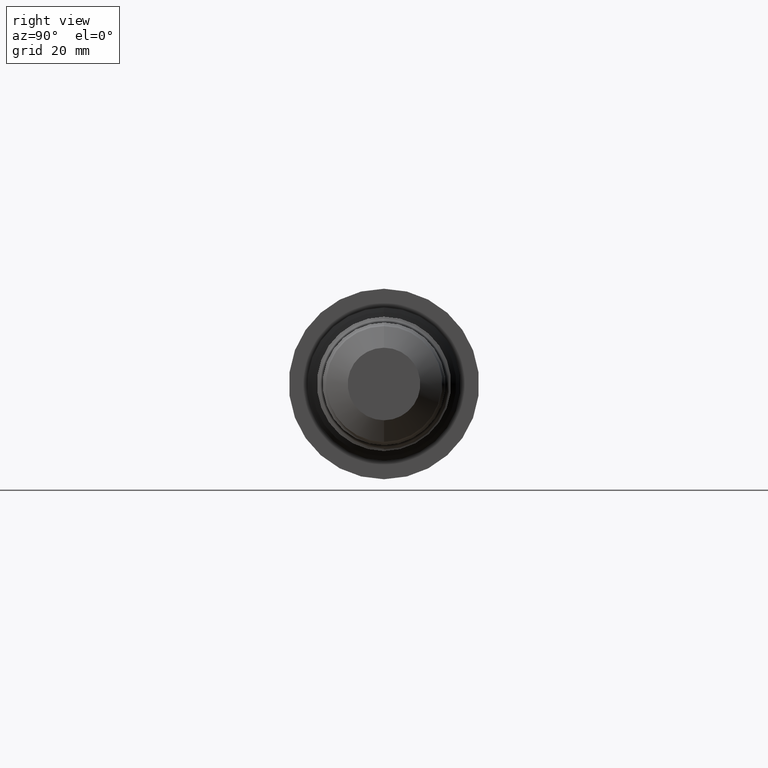
[diagram: clean part render]
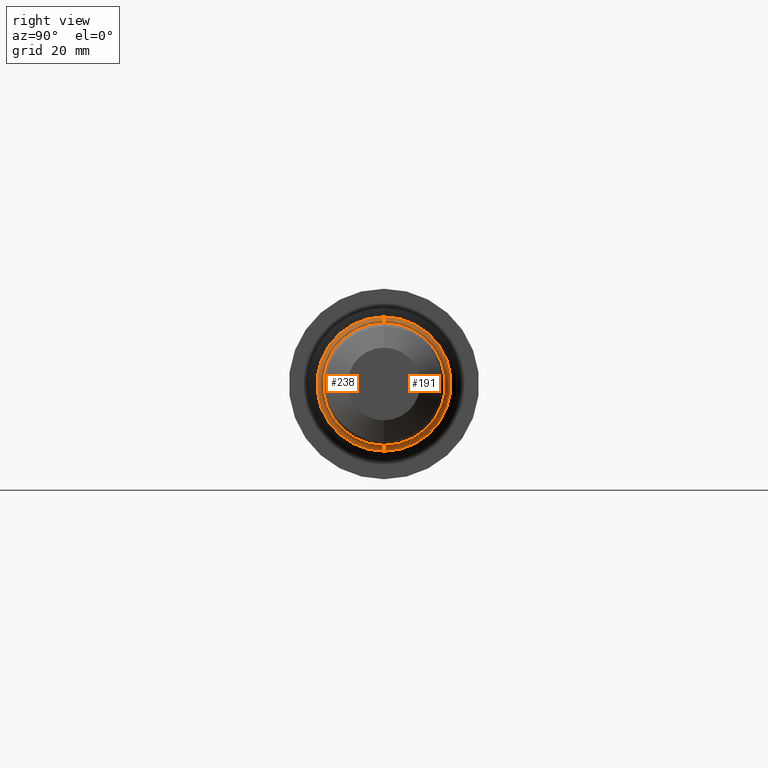
[diagram: same view with one multi-face feature highlighted, each face labeled with its STEP entity id]
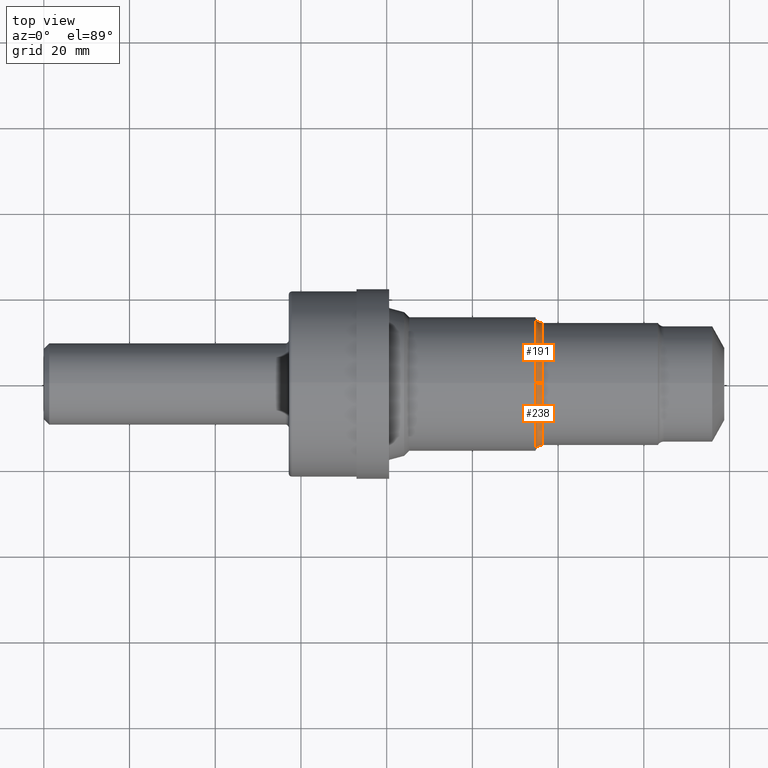
[diagram: same view with one multi-face feature highlighted, each face labeled with its STEP entity id]
A machine part, right view. The highlighted faces form ONE feature: a constant-radius fillet chain: 2 tangent blend faces with common blend radius 1.5748 mm. The faces share edges in the B-rep.
A second angle (top view) of the same feature is appended — it is thin or edge-on in the first view.
Their STEP definitions:
[1] entity #238 (Torus):
#44 = ORIENTED_EDGE ( 'NONE', *, *, #393, .F. ) ;
#47 = AXIS2_PLACEMENT_3D ( 'NONE', #154, #232, #765 ) ;
#58 = VERTEX_POINT ( 'NONE', #303 ) ;
#65 = EDGE_CURVE ( 'NONE', #789, #800, #836, .T. ) ;
#69 = DIRECTION ( 'NONE',  ( 0.0000000000000000000, 0.0000000000000000000, 1.000000000000000000 ) ) ;
#93 = EDGE_CURVE ( 'NONE', #58, #632, #562, .T. ) ;
#116 = CARTESIAN_POINT ( 'NONE',  ( 4.577428332225449203, 0.0000000000000000000, 0.0000000000000000000 ) ) ;
#154 = CARTESIAN_POINT ( 'NONE',  ( 4.577428332225449203, 7.658941081867548241E-17, -0.6254000000000000670 ) ) ;
#157 = CARTESIAN_POINT ( 'NONE',  ( 4.577428332225449203, 0.0000000000000000000, 0.6254000000000000670 ) ) ;
#162 = FACE_OUTER_BOUND ( 'NONE', #936, .T. ) ;
#206 = DIRECTION ( 'NONE',  ( -1.000000000000000000, -0.0000000000000000000, -0.0000000000000000000 ) ) ;
#212 = DIRECTION ( 'NONE',  ( -1.000000000000000000, -0.0000000000000000000, -0.0000000000000000000 ) ) ;
#232 = DIRECTION ( 'NONE',  ( -0.0000000000000000000, 1.000000000000000000, 1.224646799147353207E-16 ) ) ;
#238 = ADVANCED_FACE ( 'NONE', ( #162 ), #360, .F. ) ;
#268 = AXIS2_PLACEMENT_3D ( 'NONE', #157, #480, #911 ) ;
#286 = DIRECTION ( 'NONE',  ( -1.000000000000000000, -0.0000000000000000000, -0.0000000000000000000 ) ) ;
#303 = CARTESIAN_POINT ( 'NONE',  ( 4.516000000000000902, 7.556070750739168581E-17, -0.6169999999999999929 ) ) ;
#309 = CARTESIAN_POINT ( 'NONE',  ( 4.577428332225449203, 0.0000000000000000000, 0.5633999999999999009 ) ) ;
#326 = ORIENTED_EDGE ( 'NONE', *, *, #344, .T. ) ;
#344 = EDGE_CURVE ( 'NONE', #58, #789, #455, .T. ) ;
#360 = TOROIDAL_SURFACE ( 'NONE', #382, 0.6254000000000000670, 0.06200000000000022160 ) ;
#382 = AXIS2_PLACEMENT_3D ( 'NONE', #885, #212, #69 ) ;
#393 = EDGE_CURVE ( 'NONE', #632, #800, #802, .T. ) ;
#455 = CIRCLE ( 'NONE', #47, 0.06200000000000018691 ) ;
#479 = CARTESIAN_POINT ( 'NONE',  ( 4.516000000000000902, 0.0000000000000000000, 0.6169999999999999929 ) ) ;
#480 = DIRECTION ( 'NONE',  ( 0.0000000000000000000, -1.000000000000000000, 0.0000000000000000000 ) ) ;
#554 = AXIS2_PLACEMENT_3D ( 'NONE', #116, #286, #745 ) ;
#562 = CIRCLE ( 'NONE', #608, 0.6169999999999999929 ) ;
#608 = AXIS2_PLACEMENT_3D ( 'NONE', #741, #206, #668 ) ;
#632 = VERTEX_POINT ( 'NONE', #479 ) ;
#668 = DIRECTION ( 'NONE',  ( 0.0000000000000000000, 0.0000000000000000000, 1.000000000000000000 ) ) ;
#741 = CARTESIAN_POINT ( 'NONE',  ( 4.516000000000000902, 0.0000000000000000000, 0.0000000000000000000 ) ) ;
#745 = DIRECTION ( 'NONE',  ( 0.0000000000000000000, 0.0000000000000000000, 1.000000000000000000 ) ) ;
#765 = DIRECTION ( 'NONE',  ( 0.0000000000000000000, -1.224646799147354193E-16, 1.000000000000000000 ) ) ;
#772 = ORIENTED_EDGE ( 'NONE', *, *, #65, .T. ) ;
#789 = VERTEX_POINT ( 'NONE', #865 ) ;
#800 = VERTEX_POINT ( 'NONE', #309 ) ;
#802 = CIRCLE ( 'NONE', #268, 0.06200000000000018691 ) ;
#836 = CIRCLE ( 'NONE', #554, 0.5633999999999999009 ) ;
#865 = CARTESIAN_POINT ( 'NONE',  ( 4.577428332225449203, 7.227865408567677908E-17, -0.5633999999999999009 ) ) ;
#885 = CARTESIAN_POINT ( 'NONE',  ( 4.577428332225449203, 0.0000000000000000000, 0.0000000000000000000 ) ) ;
#911 = DIRECTION ( 'NONE',  ( 0.0000000000000000000, 0.0000000000000000000, -1.000000000000000000 ) ) ;
#936 = EDGE_LOOP ( 'NONE', ( #946, #326, #772, #44 ) ) ;
#946 = ORIENTED_EDGE ( 'NONE', *, *, #93, .F. ) ;
[2] entity #191 (Torus):
#12 = AXIS2_PLACEMENT_3D ( 'NONE', #19, #541, #471 ) ;
#19 = CARTESIAN_POINT ( 'NONE',  ( 4.577428332225449203, 0.0000000000000000000, 0.0000000000000000000 ) ) ;
#23 = TOROIDAL_SURFACE ( 'NONE', #845, 0.6254000000000000670, 0.06200000000000022160 ) ;
#47 = AXIS2_PLACEMENT_3D ( 'NONE', #154, #232, #765 ) ;
#58 = VERTEX_POINT ( 'NONE', #303 ) ;
#66 = ORIENTED_EDGE ( 'NONE', *, *, #344, .F. ) ;
#102 = AXIS2_PLACEMENT_3D ( 'NONE', #573, #384, #267 ) ;
#154 = CARTESIAN_POINT ( 'NONE',  ( 4.577428332225449203, 7.658941081867548241E-17, -0.6254000000000000670 ) ) ;
#157 = CARTESIAN_POINT ( 'NONE',  ( 4.577428332225449203, 0.0000000000000000000, 0.6254000000000000670 ) ) ;
#177 = CIRCLE ( 'NONE', #102, 0.6169999999999999929 ) ;
#178 = ORIENTED_EDGE ( 'NONE', *, *, #485, .F. ) ;
#191 = ADVANCED_FACE ( 'NONE', ( #750 ), #23, .F. ) ;
#195 = EDGE_LOOP ( 'NONE', ( #66, #178, #224, #623 ) ) ;
#224 = ORIENTED_EDGE ( 'NONE', *, *, #393, .T. ) ;
#232 = DIRECTION ( 'NONE',  ( -0.0000000000000000000, 1.000000000000000000, 1.224646799147353207E-16 ) ) ;
#267 = DIRECTION ( 'NONE',  ( 0.0000000000000000000, 0.0000000000000000000, 1.000000000000000000 ) ) ;
#268 = AXIS2_PLACEMENT_3D ( 'NONE', #157, #480, #911 ) ;
#303 = CARTESIAN_POINT ( 'NONE',  ( 4.516000000000000902, 7.556070750739168581E-17, -0.6169999999999999929 ) ) ;
#309 = CARTESIAN_POINT ( 'NONE',  ( 4.577428332225449203, 0.0000000000000000000, 0.5633999999999999009 ) ) ;
#340 = EDGE_CURVE ( 'NONE', #800, #789, #850, .T. ) ;
#344 = EDGE_CURVE ( 'NONE', #58, #789, #455, .T. ) ;
#384 = DIRECTION ( 'NONE',  ( -1.000000000000000000, -0.0000000000000000000, -0.0000000000000000000 ) ) ;
#393 = EDGE_CURVE ( 'NONE', #632, #800, #802, .T. ) ;
#422 = DIRECTION ( 'NONE',  ( 0.0000000000000000000, 0.0000000000000000000, 1.000000000000000000 ) ) ;
#455 = CIRCLE ( 'NONE', #47, 0.06200000000000018691 ) ;
#471 = DIRECTION ( 'NONE',  ( 0.0000000000000000000, 0.0000000000000000000, 1.000000000000000000 ) ) ;
#479 = CARTESIAN_POINT ( 'NONE',  ( 4.516000000000000902, 0.0000000000000000000, 0.6169999999999999929 ) ) ;
#480 = DIRECTION ( 'NONE',  ( 0.0000000000000000000, -1.000000000000000000, 0.0000000000000000000 ) ) ;
#485 = EDGE_CURVE ( 'NONE', #632, #58, #177, .T. ) ;
#541 = DIRECTION ( 'NONE',  ( -1.000000000000000000, -0.0000000000000000000, -0.0000000000000000000 ) ) ;
#573 = CARTESIAN_POINT ( 'NONE',  ( 4.516000000000000902, 0.0000000000000000000, 0.0000000000000000000 ) ) ;
#623 = ORIENTED_EDGE ( 'NONE', *, *, #340, .T. ) ;
#632 = VERTEX_POINT ( 'NONE', #479 ) ;
#657 = CARTESIAN_POINT ( 'NONE',  ( 4.577428332225449203, 0.0000000000000000000, 0.0000000000000000000 ) ) ;
#750 = FACE_OUTER_BOUND ( 'NONE', #195, .T. ) ;
#765 = DIRECTION ( 'NONE',  ( 0.0000000000000000000, -1.224646799147354193E-16, 1.000000000000000000 ) ) ;
#789 = VERTEX_POINT ( 'NONE', #865 ) ;
#800 = VERTEX_POINT ( 'NONE', #309 ) ;
#802 = CIRCLE ( 'NONE', #268, 0.06200000000000018691 ) ;
#845 = AXIS2_PLACEMENT_3D ( 'NONE', #657, #869, #422 ) ;
#850 = CIRCLE ( 'NONE', #12, 0.5633999999999999009 ) ;
#865 = CARTESIAN_POINT ( 'NONE',  ( 4.577428332225449203, 7.227865408567677908E-17, -0.5633999999999999009 ) ) ;
#869 = DIRECTION ( 'NONE',  ( -1.000000000000000000, -0.0000000000000000000, -0.0000000000000000000 ) ) ;
#911 = DIRECTION ( 'NONE',  ( 0.0000000000000000000, 0.0000000000000000000, -1.000000000000000000 ) ) ;